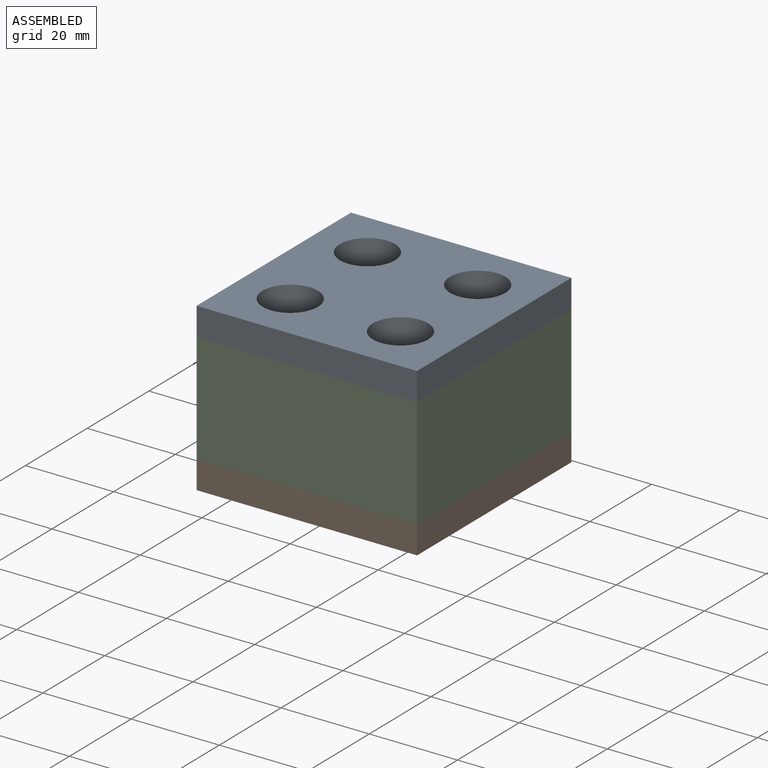
[diagram: assembled view]
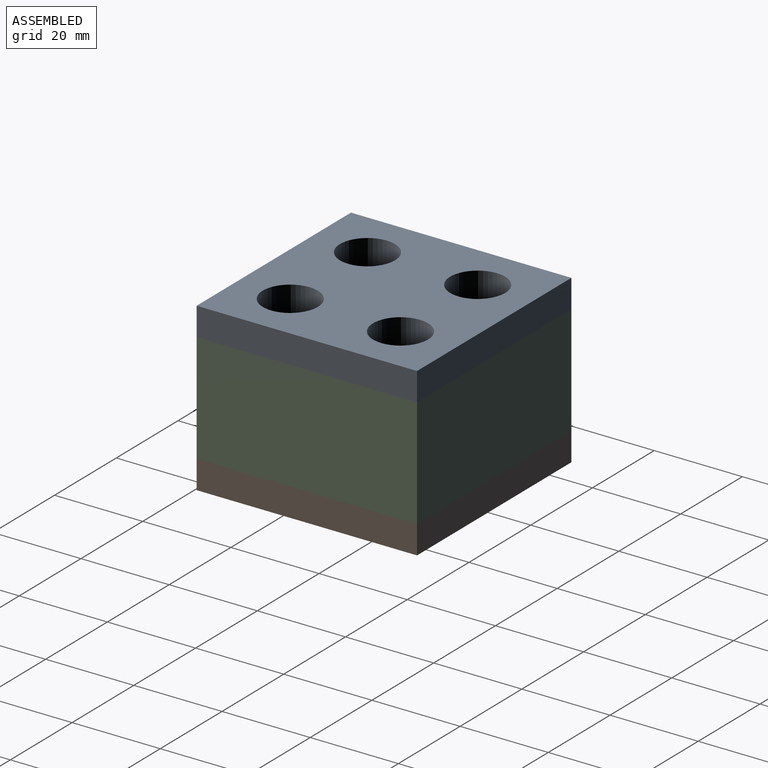
[diagram: assembled view, second angle]
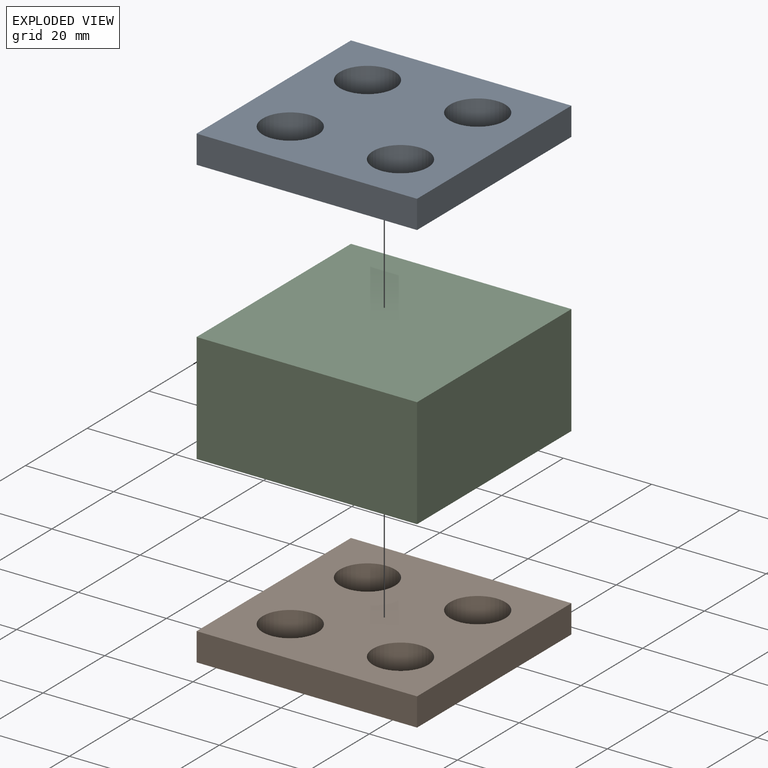
[diagram: exploded view]
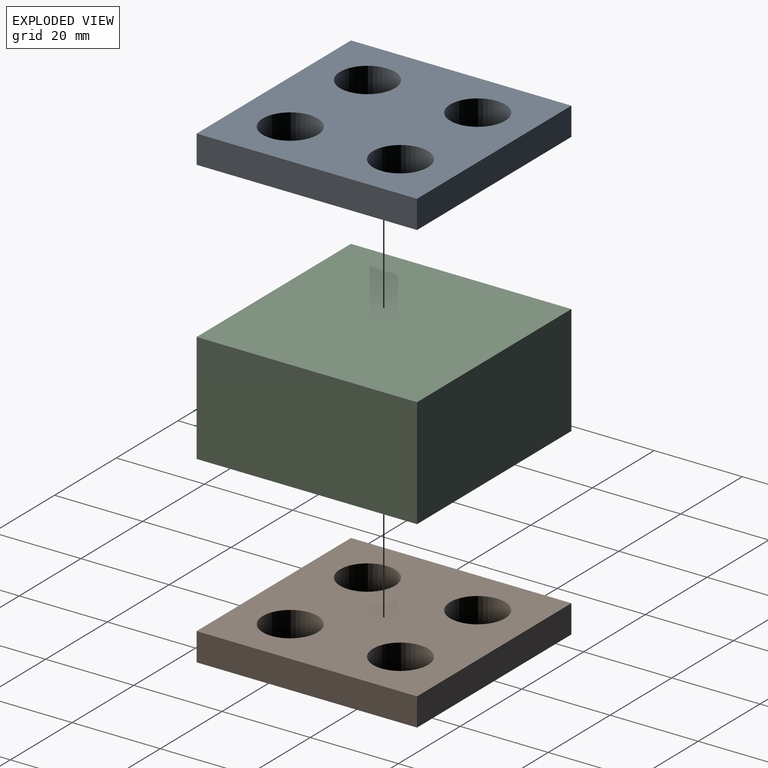
[diagram: exploded view, second angle]
ASSEMBLY  parts=3 mates=2
PART A: 10 faces, bbox 50x50x6.4 mm
  f0: plane 50x6.4mm, normal (-1,0,0), area 320mm2, adj f1,f7,f8,f9
  f1: plane 50x6.4mm, normal (0,-1,0), area 320mm2, adj f0,f2,f8,f9
  f2: plane 50x6.4mm, normal (1,0,0), area 320mm2, adj f1,f7,f8,f9
  f3: cylinder r=6.25mm len=12.5mm, axis (0,0,-1), area 251.3mm2, adj f8,f9
  f4: cylinder r=6.25mm len=12.5mm, axis (0,0,-1), area 251.3mm2, adj f8,f9
  f5: cylinder r=6.25mm len=12.5mm, axis (0,0,-1), area 251.3mm2, adj f8,f9
  f6: cylinder r=6.25mm len=12.5mm, axis (0,0,-1), area 251.3mm2, adj f8,f9
  f7: plane 50x6.4mm, normal (0,1,0), area 320mm2, adj f0,f2,f8,f9
  f8: plane 50x50mm, normal (0,0,1), area 2009.1mm2, adj f0,f1,f2,f3,f4,f5,f6,f7
  f9: plane 50x50mm, normal (0,0,-1), area 2009.1mm2, adj f0,f1,f2,f3,f4,f5,f6,f7
PART B: same geometry as A
PART C: 6 faces, bbox 50x50x25 mm
  f0: plane 50x25mm, normal (-1,0,0), area 1250mm2, adj f1,f3,f4,f5
  f1: plane 50x25mm, normal (0,-1,0), area 1250mm2, adj f0,f2,f4,f5
  f2: plane 50x25mm, normal (1,0,0), area 1250mm2, adj f1,f3,f4,f5
  f3: plane 50x25mm, normal (0,1,0), area 1250mm2, adj f0,f2,f4,f5
  f4: plane 50x50mm, normal (0,0,1), area 2500mm2, adj f0,f1,f2,f3
  f5: plane 50x50mm, normal (0,0,-1), area 2500mm2, adj f0,f1,f2,f3
PLACE A t=(-17.84,10.26,49.46)mm
PLACE B t=(-17.84,10.26,18.06)mm
PLACE C t=(-17.84,10.26,24.46)mm
MATE fastened B.f8 <-> C.f5  axis (0,0,1) through (-17.84,10.26,24.46)mm
MATE fastened A.f9 <-> C.f4  axis (0,0,-1) through (-17.84,10.26,49.46)mm
